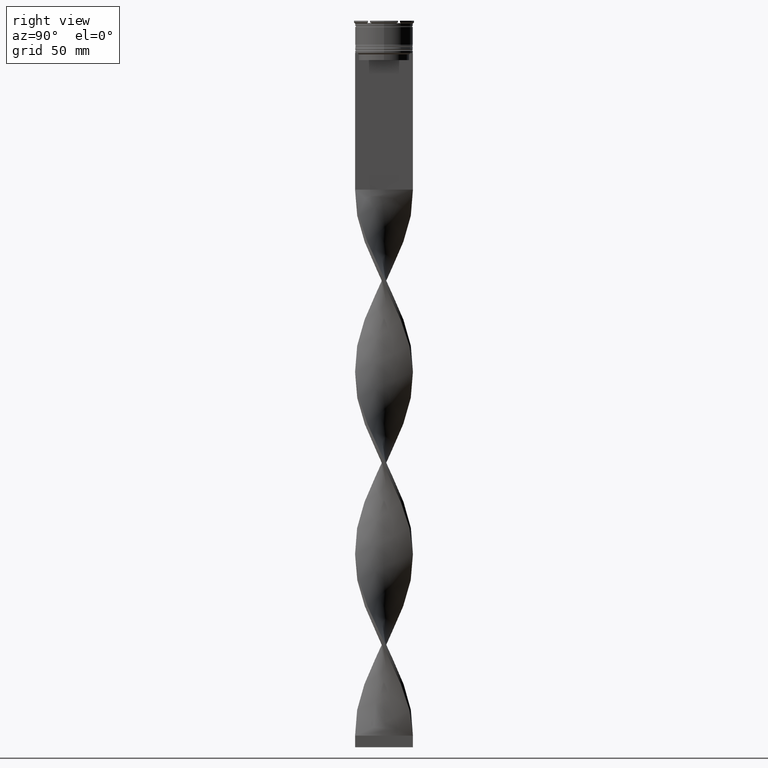
[diagram: clean part render]
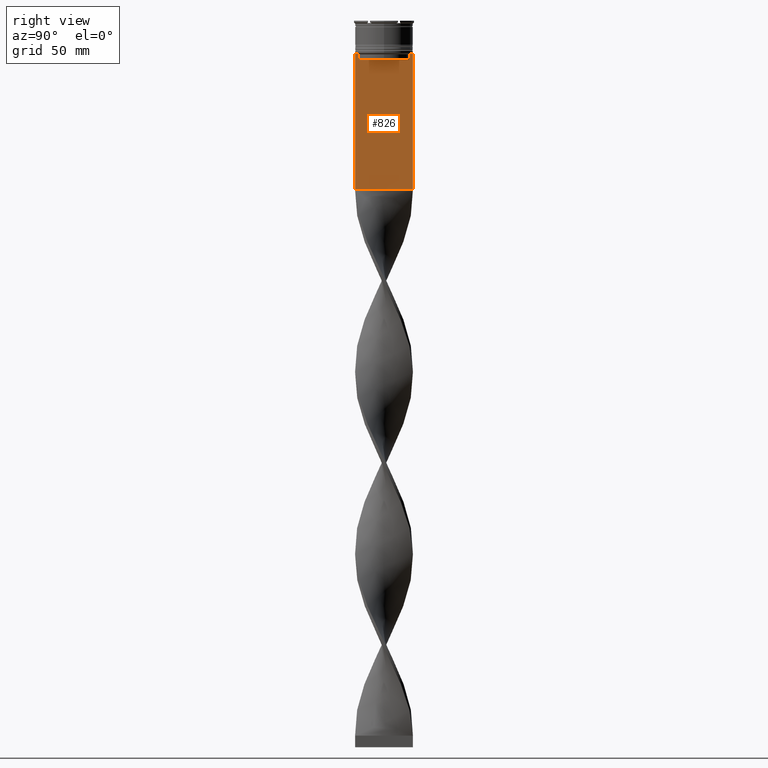
[diagram: same view with one face highlighted and labeled with its STEP entity id]
A machine part, right view. The second image highlights one B-rep face of the part: STEP entity #826.
In plain terms, the highlighted planar face has unit normal (-1, 0, 0).
Its self-contained STEP definition (entity closure, byte-faithful):
#3 = CARTESIAN_POINT ( 'NONE',  ( 0.7500000000000002220, 10.87416663473574197, 0.000000000000000000 ) ) ;
#9 = CARTESIAN_POINT ( 'NONE',  ( 0.7500000000000002220, 12.50000000000000000, 11.04495957273638673 ) ) ;
#145 = CARTESIAN_POINT ( 'NONE',  ( 0.7500000000000002220, -11.37530219378809093, -14.00000000000000178 ) ) ;
#153 = ORIENTED_EDGE ( 'NONE', *, *, #1666, .T. ) ;
#362 = CARTESIAN_POINT ( 'NONE',  ( 0.7500000000000002220, -10.87416663473574197, 0.000000000000000000 ) ) ;
#446 = CARTESIAN_POINT ( 'NONE',  ( 0.7500000000000002220, -12.50000000000000000, -14.00000000000000178 ) ) ;
#496 = DIRECTION ( 'NONE',  ( 0.000000000000000000, -1.000000000000000000, 0.000000000000000000 ) ) ;
#511 = ORIENTED_EDGE ( 'NONE', *, *, #1514, .T. ) ;
#573 = ORIENTED_EDGE ( 'NONE', *, *, #3261, .T. ) ;
#652 = CARTESIAN_POINT ( 'NONE',  ( 0.7500000000000002220, 11.04122051153452055, -14.33334204648729404 ) ) ;
#672 = VECTOR ( 'NONE', #3243, 1000.000000000000000 ) ;
#720 = ORIENTED_EDGE ( 'NONE', *, *, #3022, .T. ) ;
#826 = ADVANCED_FACE ( 'NONE', ( #1283 ), #1699, .F. ) ;
#942 = CARTESIAN_POINT ( 'NONE',  ( 0.7500000000000002220, -12.50000000000000000, 11.04495957273638673 ) ) ;
#987 = EDGE_CURVE ( 'NONE', #1961, #3640, #3534, .T. ) ;
#1040 = VECTOR ( 'NONE', #1092, 1000.000000000000000 ) ;
#1092 = DIRECTION ( 'NONE',  ( 0.000000000000000000, 0.000000000000000000, -1.000000000000000000 ) ) ;
#1140 = VERTEX_POINT ( 'NONE', #1377 ) ;
#1158 = CARTESIAN_POINT ( 'NONE',  ( 0.7500000000000002220, -12.50000000000000000, -14.00000000000000178 ) ) ;
#1161 = ORIENTED_EDGE ( 'NONE', *, *, #987, .T. ) ;
#1176 = LINE ( 'NONE', #446, #672 ) ;
#1181 = CARTESIAN_POINT ( 'NONE',  ( 0.7500000000000002220, 11.37530219378809093, -14.00000000000000178 ) ) ;
#1199 = CARTESIAN_POINT ( 'NONE',  ( 0.7500000000000002220, -11.20826532207830439, -14.16667499063191826 ) ) ;
#1279 = ORIENTED_EDGE ( 'NONE', *, *, #2147, .T. ) ;
#1283 = FACE_OUTER_BOUND ( 'NONE', #1993, .T. ) ;
#1302 = LINE ( 'NONE', #2313, #4234 ) ;
#1377 = CARTESIAN_POINT ( 'NONE',  ( 0.7500000000000002220, 10.87416663473574019, -17.00000000000000000 ) ) ;
#1415 = VERTEX_POINT ( 'NONE', #3569 ) ;
#1418 = CARTESIAN_POINT ( 'NONE',  ( 0.7500000000000002220, 10.90000000000000213, -17.00000000000000000 ) ) ;
#1514 = EDGE_CURVE ( 'NONE', #2822, #2042, #2187, .T. ) ;
#1541 = VECTOR ( 'NONE', #496, 1000.000000000000000 ) ;
#1658 = CARTESIAN_POINT ( 'NONE',  ( 0.7500000000000002220, -12.50000000000000000, -14.00000000000000178 ) ) ;
#1666 = EDGE_CURVE ( 'NONE', #3226, #1140, #3472, .T. ) ;
#1699 = PLANE ( 'NONE',  #3937 ) ;
#1730 = VERTEX_POINT ( 'NONE', #2155 ) ;
#1759 = VECTOR ( 'NONE', #1801, 1000.000000000000000 ) ;
#1761 = CARTESIAN_POINT ( 'NONE',  ( 0.7500000000000002220, -12.50000000000000000, 11.04495957273638673 ) ) ;
#1801 = DIRECTION ( 'NONE',  ( 0.000000000000000000, 0.000000000000000000, -1.000000000000000000 ) ) ;
#1813 = B_SPLINE_CURVE_WITH_KNOTS ( 'NONE', 3,
 ( #2589, #2858, #1199, #145 ),
 .UNSPECIFIED., .F., .F.,
 ( 4, 4 ),
 ( 0.05009718908159448147, 0.05081156920313959630 ),
 .UNSPECIFIED. ) ;
#1829 = CARTESIAN_POINT ( 'NONE',  ( 0.7500000000000002220, -12.50000000000000000, -73.00000000000001421 ) ) ;
#1831 = VECTOR ( 'NONE', #4362, 1000.000000000000000 ) ;
#1866 = ORIENTED_EDGE ( 'NONE', *, *, #3411, .F. ) ;
#1912 = VECTOR ( 'NONE', #3409, 1000.000000000000000 ) ;
#1961 = VERTEX_POINT ( 'NONE', #2977 ) ;
#1993 = EDGE_LOOP ( 'NONE', ( #2924, #2399, #153, #1279, #3416, #720, #2827, #2378, #1161, #573, #1866, #511 ) ) ;
#2028 = CARTESIAN_POINT ( 'NONE',  ( 0.7500000000000002220, -12.50000000000000000, -73.00000000000001421 ) ) ;
#2042 = VERTEX_POINT ( 'NONE', #2910 ) ;
#2045 = VERTEX_POINT ( 'NONE', #4310 ) ;
#2075 = CARTESIAN_POINT ( 'NONE',  ( 0.7500000000000002220, 11.37530219378809093, -14.00000000000000178 ) ) ;
#2147 = EDGE_CURVE ( 'NONE', #1140, #2045, #2382, .T. ) ;
#2155 = CARTESIAN_POINT ( 'NONE',  ( 0.7500000000000002220, -10.87416663473574197, -14.50000000000000000 ) ) ;
#2187 = LINE ( 'NONE', #1158, #1541 ) ;
#2236 = VERTEX_POINT ( 'NONE', #3564 ) ;
#2313 = CARTESIAN_POINT ( 'NONE',  ( 0.7500000000000002220, -12.50000000000000000, -14.00000000000000178 ) ) ;
#2319 = LINE ( 'NONE', #1658, #1912 ) ;
#2378 = ORIENTED_EDGE ( 'NONE', *, *, #3118, .T. ) ;
#2382 = LINE ( 'NONE', #1418, #3860 ) ;
#2397 = VERTEX_POINT ( 'NONE', #1181 ) ;
#2399 = ORIENTED_EDGE ( 'NONE', *, *, #3447, .T. ) ;
#2434 = LINE ( 'NONE', #9, #3866 ) ;
#2589 = CARTESIAN_POINT ( 'NONE',  ( 0.7500000000000002220, -10.87416663473574197, -14.50000000000000000 ) ) ;
#2645 = LINE ( 'NONE', #362, #3565 ) ;
#2688 = EDGE_CURVE ( 'NONE', #2045, #1730, #2645, .T. ) ;
#2807 = CARTESIAN_POINT ( 'NONE',  ( 0.7500000000000002220, 10.87416663473574197, -14.50000000000000000 ) ) ;
#2822 = VERTEX_POINT ( 'NONE', #3440 ) ;
#2827 = ORIENTED_EDGE ( 'NONE', *, *, #4209, .T. ) ;
#2858 = CARTESIAN_POINT ( 'NONE',  ( 0.7500000000000002220, -11.04122051801870441, -14.33334204001847567 ) ) ;
#2910 = CARTESIAN_POINT ( 'NONE',  ( 0.7500000000000002220, 12.37729776647553059, -14.00000000000000178 ) ) ;
#2924 = ORIENTED_EDGE ( 'NONE', *, *, #3769, .T. ) ;
#2977 = CARTESIAN_POINT ( 'NONE',  ( 0.7500000000000002220, -12.50000000000000000, -14.00000000000000178 ) ) ;
#3022 = EDGE_CURVE ( 'NONE', #1730, #2236, #1813, .T. ) ;
#3031 = DIRECTION ( 'NONE',  ( 0.000000000000000000, 0.000000000000000000, 1.000000000000000000 ) ) ;
#3105 = CARTESIAN_POINT ( 'NONE',  ( 0.7500000000000002220, 11.20826531587977648, -14.16667499681701514 ) ) ;
#3118 = EDGE_CURVE ( 'NONE', #1415, #1961, #1176, .T. ) ;
#3149 = VERTEX_POINT ( 'NONE', #3674 ) ;
#3226 = VERTEX_POINT ( 'NONE', #3747 ) ;
#3243 = DIRECTION ( 'NONE',  ( 0.000000000000000000, -1.000000000000000000, 0.000000000000000000 ) ) ;
#3261 = EDGE_CURVE ( 'NONE', #3640, #3149, #3363, .T. ) ;
#3363 = LINE ( 'NONE', #2028, #1831 ) ;
#3409 = DIRECTION ( 'NONE',  ( 0.000000000000000000, -1.000000000000000000, 0.000000000000000000 ) ) ;
#3411 = EDGE_CURVE ( 'NONE', #2822, #3149, #2434, .T. ) ;
#3416 = ORIENTED_EDGE ( 'NONE', *, *, #2688, .T. ) ;
#3440 = CARTESIAN_POINT ( 'NONE',  ( 0.7500000000000002220, 12.50000000000000000, -14.00000000000000178 ) ) ;
#3447 = EDGE_CURVE ( 'NONE', #2397, #3226, #3887, .T. ) ;
#3458 = DIRECTION ( 'NONE',  ( 0.000000000000000000, 0.000000000000000000, -1.000000000000000000 ) ) ;
#3472 = LINE ( 'NONE', #3, #1040 ) ;
#3534 = LINE ( 'NONE', #1761, #1759 ) ;
#3564 = CARTESIAN_POINT ( 'NONE',  ( 0.7500000000000002220, -11.37530219378809093, -14.00000000000000178 ) ) ;
#3565 = VECTOR ( 'NONE', #4163, 1000.000000000000000 ) ;
#3569 = CARTESIAN_POINT ( 'NONE',  ( 0.7500000000000002220, -12.37729776647553059, -14.00000000000000178 ) ) ;
#3640 = VERTEX_POINT ( 'NONE', #1829 ) ;
#3674 = CARTESIAN_POINT ( 'NONE',  ( 0.7500000000000002220, 12.50000000000000000, -73.00000000000001421 ) ) ;
#3747 = CARTESIAN_POINT ( 'NONE',  ( 0.7500000000000002220, 10.87416663473574197, -14.50000000000000000 ) ) ;
#3762 = DIRECTION ( 'NONE',  ( 0.000000000000000000, -1.000000000000000000, 0.000000000000000000 ) ) ;
#3769 = EDGE_CURVE ( 'NONE', #2042, #2397, #1302, .T. ) ;
#3860 = VECTOR ( 'NONE', #3762, 1000.000000000000000 ) ;
#3866 = VECTOR ( 'NONE', #3458, 1000.000000000000000 ) ;
#3887 = B_SPLINE_CURVE_WITH_KNOTS ( 'NONE', 3,
 ( #2075, #3105, #652, #2807 ),
 .UNSPECIFIED., .F., .F.,
 ( 4, 4 ),
 ( 0.01936090553552769281, 0.02006881572333104116 ),
 .UNSPECIFIED. ) ;
#3937 = AXIS2_PLACEMENT_3D ( 'NONE', #942, #4470, #3031 ) ;
#3983 = DIRECTION ( 'NONE',  ( 0.000000000000000000, -1.000000000000000000, 0.000000000000000000 ) ) ;
#4163 = DIRECTION ( 'NONE',  ( -0.000000000000000000, -0.000000000000000000, 1.000000000000000000 ) ) ;
#4209 = EDGE_CURVE ( 'NONE', #2236, #1415, #2319, .T. ) ;
#4234 = VECTOR ( 'NONE', #3983, 1000.000000000000000 ) ;
#4310 = CARTESIAN_POINT ( 'NONE',  ( 0.7500000000000002220, -10.87416663473574019, -17.00000000000000000 ) ) ;
#4362 = DIRECTION ( 'NONE',  ( 0.000000000000000000, 1.000000000000000000, 0.000000000000000000 ) ) ;
#4470 = DIRECTION ( 'NONE',  ( -1.000000000000000000, 0.000000000000000000, 0.000000000000000000 ) ) ;